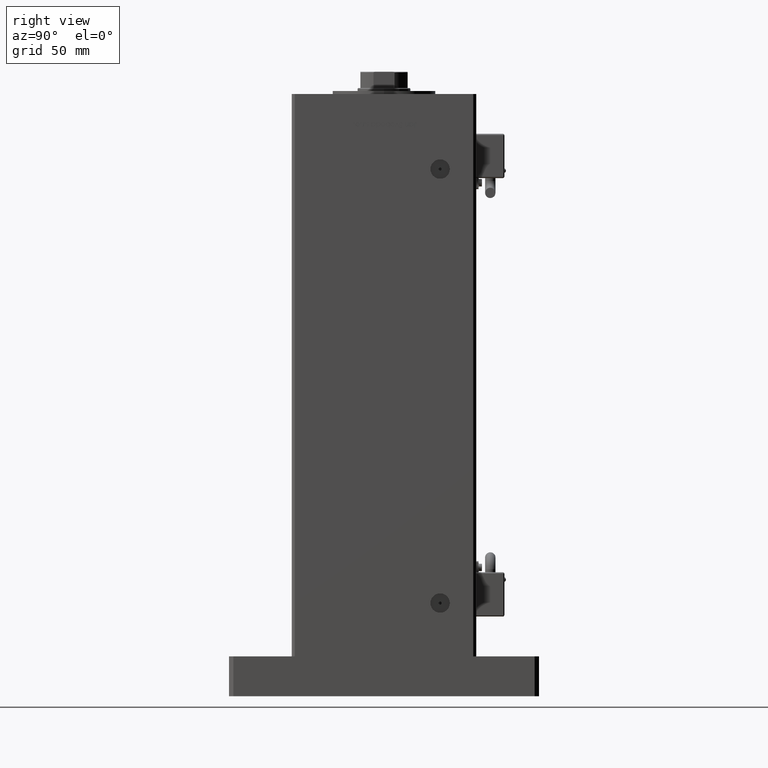
[diagram: clean part render]
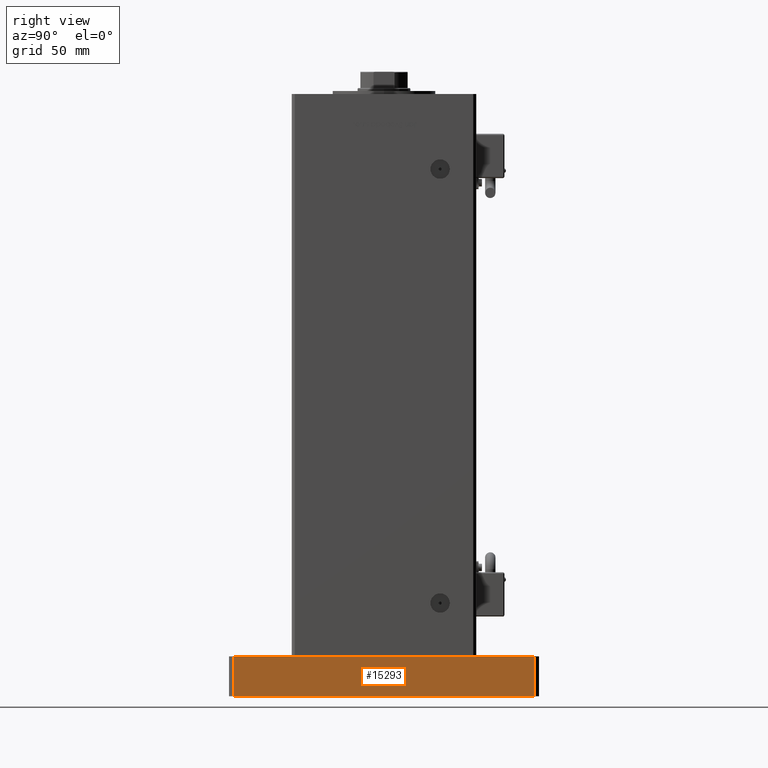
[diagram: same view with one face highlighted and labeled with its STEP entity id]
A machine part, right view. The second image highlights one B-rep face of the part: STEP entity #15293.
In plain terms, the highlighted planar face has unit normal (-1, 0, 0).
Its self-contained STEP definition (entity closure, byte-faithful):
#267 = EDGE_CURVE ( 'NONE', #42102, #2468, #10107, .T. ) ;
#639 = CARTESIAN_POINT ( 'NONE',  ( 75.00000000000001421, 102.0000000000000142, 27.00000000000000000 ) ) ;
#2468 = VERTEX_POINT ( 'NONE', #54832 ) ;
#3217 = CARTESIAN_POINT ( 'NONE',  ( 75.00000000000000000, -101.9999999999999005, 27.00000000000000000 ) ) ;
#4227 = EDGE_CURVE ( 'NONE', #2468, #12062, #14118, .T. ) ;
#4832 = EDGE_CURVE ( 'NONE', #45028, #12062, #31371, .T. ) ;
#10107 = LINE ( 'NONE', #52876, #39138 ) ;
#10836 = EDGE_CURVE ( 'NONE', #42102, #45028, #13627, .T. ) ;
#11415 = ORIENTED_EDGE ( 'NONE', *, *, #4832, .T. ) ;
#12062 = VERTEX_POINT ( 'NONE', #31268 ) ;
#13627 = LINE ( 'NONE', #40553, #31158 ) ;
#14118 = LINE ( 'NONE', #639, #30896 ) ;
#15293 = ADVANCED_FACE ( 'NONE', ( #16685 ), #34698, .F. ) ;
#16685 = FACE_OUTER_BOUND ( 'NONE', #41169, .T. ) ;
#19071 = VECTOR ( 'NONE', #48588, 1000.000000000000000 ) ;
#20701 = DIRECTION ( 'NONE',  ( -6.802837160693364103E-17, -1.000000000000000000, 0.000000000000000000 ) ) ;
#26223 = DIRECTION ( 'NONE',  ( 6.802837160693364103E-17, 1.000000000000000000, 0.000000000000000000 ) ) ;
#27353 = DIRECTION ( 'NONE',  ( -0.000000000000000000, -0.000000000000000000, -1.000000000000000000 ) ) ;
#30735 = CARTESIAN_POINT ( 'NONE',  ( 75.00000000000000000, -101.9999999999999005, 0.000000000000000000 ) ) ;
#30896 = VECTOR ( 'NONE', #35596, 1000.000000000000000 ) ;
#31158 = VECTOR ( 'NONE', #27353, 1000.000000000000000 ) ;
#31268 = CARTESIAN_POINT ( 'NONE',  ( 75.00000000000001421, 102.0000000000000142, 0.000000000000000000 ) ) ;
#31371 = LINE ( 'NONE', #48872, #19071 ) ;
#34698 = PLANE ( 'NONE',  #40068 ) ;
#35596 = DIRECTION ( 'NONE',  ( -0.000000000000000000, -0.000000000000000000, -1.000000000000000000 ) ) ;
#37568 = ORIENTED_EDGE ( 'NONE', *, *, #10836, .T. ) ;
#39138 = VECTOR ( 'NONE', #26223, 1000.000000000000000 ) ;
#40068 = AXIS2_PLACEMENT_3D ( 'NONE', #3217, #52195, #20701 ) ;
#40553 = CARTESIAN_POINT ( 'NONE',  ( 75.00000000000000000, -101.9999999999999005, 27.00000000000000000 ) ) ;
#41169 = EDGE_LOOP ( 'NONE', ( #11415, #45819, #55096, #37568 ) ) ;
#42102 = VERTEX_POINT ( 'NONE', #53200 ) ;
#45028 = VERTEX_POINT ( 'NONE', #30735 ) ;
#45819 = ORIENTED_EDGE ( 'NONE', *, *, #4227, .F. ) ;
#48588 = DIRECTION ( 'NONE',  ( 6.802837160693364103E-17, 1.000000000000000000, 0.000000000000000000 ) ) ;
#48872 = CARTESIAN_POINT ( 'NONE',  ( 75.00000000000000000, -101.9999999999999005, 0.000000000000000000 ) ) ;
#52195 = DIRECTION ( 'NONE',  ( -1.000000000000000000, 6.802837160693364103E-17, 0.000000000000000000 ) ) ;
#52876 = CARTESIAN_POINT ( 'NONE',  ( 75.00000000000000000, -101.9999999999999005, 27.00000000000000000 ) ) ;
#53200 = CARTESIAN_POINT ( 'NONE',  ( 75.00000000000000000, -101.9999999999999005, 27.00000000000000000 ) ) ;
#54832 = CARTESIAN_POINT ( 'NONE',  ( 75.00000000000001421, 102.0000000000000142, 27.00000000000000000 ) ) ;
#55096 = ORIENTED_EDGE ( 'NONE', *, *, #267, .F. ) ;